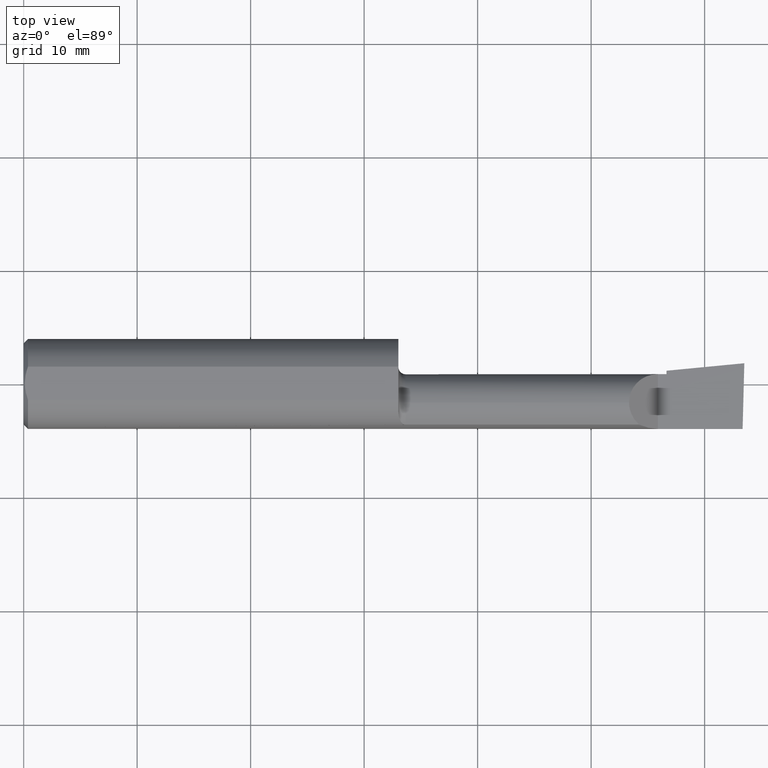
[diagram: clean part render]
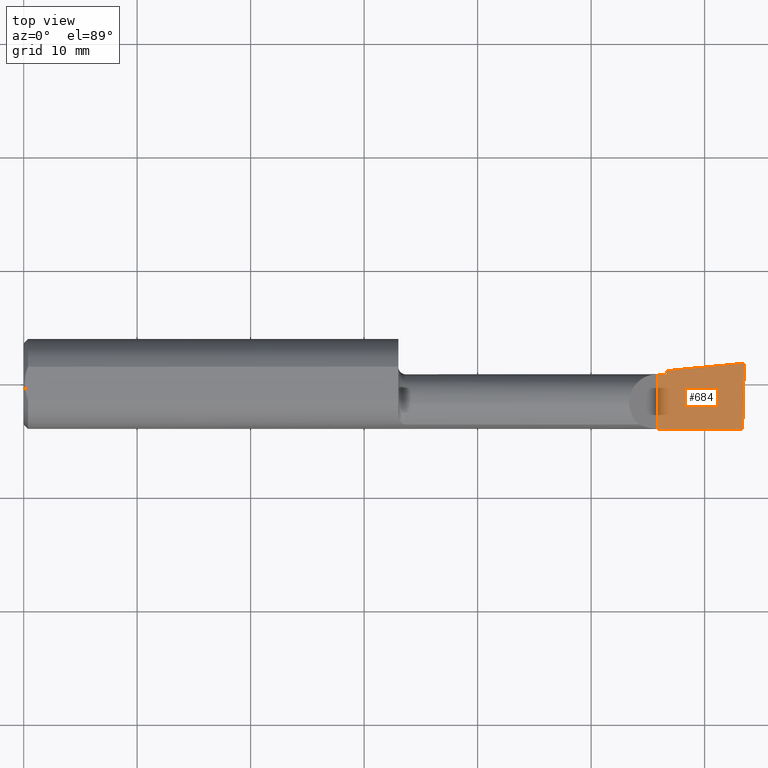
[diagram: same view with one face highlighted and labeled with its STEP entity id]
A machine part, top view. The second image highlights one B-rep face of the part: STEP entity #684.
In plain terms, the highlighted planar face has unit normal (-0, 0, -1).
Its self-contained STEP definition (entity closure, byte-faithful):
#54 = VERTEX_POINT ( 'NONE', #344 ) ;
#56 = FACE_OUTER_BOUND ( 'NONE', #578, .T. ) ;
#58 = CARTESIAN_POINT ( 'NONE',  ( 2.229999999999999982, 0.04590195698666835883, 3.180041805124806541E-16 ) ) ;
#59 = ORIENTED_EDGE ( 'NONE', *, *, #305, .F. ) ;
#66 = LINE ( 'NONE', #681, #334 ) ;
#70 = VERTEX_POINT ( 'NONE', #58 ) ;
#84 = VERTEX_POINT ( 'NONE', #661 ) ;
#105 = VECTOR ( 'NONE', #614, 39.37007874015748143 ) ;
#133 = DIRECTION ( 'NONE',  ( 0.0000000000000000000, 1.000000000000000000, 0.0000000000000000000 ) ) ;
#139 = VERTEX_POINT ( 'NONE', #542 ) ;
#145 = LINE ( 'NONE', #519, #479 ) ;
#159 = EDGE_CURVE ( 'NONE', #70, #569, #194, .T. ) ;
#179 = CARTESIAN_POINT ( 'NONE',  ( 1.067853742648958049, -0.06599999999999998923, 2.099619311869716025E-16 ) ) ;
#194 = LINE ( 'NONE', #179, #686 ) ;
#209 = EDGE_CURVE ( 'NONE', #139, #569, #408, .T. ) ;
#233 = CARTESIAN_POINT ( 'NONE',  ( 2.491576527842699562, -0.2497794236187485528, 6.912943690626120576E-17 ) ) ;
#258 = VECTOR ( 'NONE', #645, 39.37007874015748143 ) ;
#265 = EDGE_CURVE ( 'NONE', #54, #84, #275, .T. ) ;
#275 = LINE ( 'NONE', #515, #293 ) ;
#293 = VECTOR ( 'NONE', #301, 39.37007874015748143 ) ;
#294 = CARTESIAN_POINT ( 'NONE',  ( 2.500000000000000000, -0.2500000000000000555, 6.829619984160658046E-17 ) ) ;
#301 = DIRECTION ( 'NONE',  ( -0.0000000000000000000, 1.000000000000000000, -0.0000000000000000000 ) ) ;
#305 = EDGE_CURVE ( 'NONE', #350, #70, #145, .T. ) ;
#315 = PLANE ( 'NONE',  #683 ) ;
#318 = EDGE_CURVE ( 'NONE', #84, #350, #66, .T. ) ;
#323 = DIRECTION ( 'NONE',  ( -1.000000000000000000, 0.0000000000000000000, 9.891848030060559526E-17 ) ) ;
#324 = DIRECTION ( 'NONE',  ( -9.891848030060559526E-17, 0.0000000000000000000, -1.000000000000000000 ) ) ;
#334 = VECTOR ( 'NONE', #626, 39.37007874015748143 ) ;
#344 = CARTESIAN_POINT ( 'NONE',  ( 2.200000000000000178, -0.1560999999999999888, 9.797174393178826150E-17 ) ) ;
#350 = VERTEX_POINT ( 'NONE', #685 ) ;
#408 = LINE ( 'NONE', #233, #105 ) ;
#445 = ORIENTED_EDGE ( 'NONE', *, *, #499, .F. ) ;
#459 = ORIENTED_EDGE ( 'NONE', *, *, #318, .F. ) ;
#479 = VECTOR ( 'NONE', #133, 39.37007874015748143 ) ;
#499 = EDGE_CURVE ( 'NONE', #139, #54, #620, .T. ) ;
#513 = ORIENTED_EDGE ( 'NONE', *, *, #159, .F. ) ;
#515 = CARTESIAN_POINT ( 'NONE',  ( 2.200000000000000178, -0.2500000000000000555, 9.797174393178826150E-17 ) ) ;
#519 = CARTESIAN_POINT ( 'NONE',  ( 2.229999999999999982, -0.2500000000000000555, 9.500418952277011559E-17 ) ) ;
#530 = ORIENTED_EDGE ( 'NONE', *, *, #265, .F. ) ;
#542 = CARTESIAN_POINT ( 'NONE',  ( 2.494029609882228549, -0.1561000000000000165, 6.889038570631779204E-17 ) ) ;
#547 = CARTESIAN_POINT ( 'NONE',  ( 2.500000000000015543, 0.07190000000002047531, 6.193638301338760095E-14 ) ) ;
#569 = VERTEX_POINT ( 'NONE', #547 ) ;
#578 = EDGE_LOOP ( 'NONE', ( #445, #671, #513, #59, #459, #530 ) ) ;
#614 = DIRECTION ( 'NONE',  ( 0.02617694830789217553, 0.9996573249755568158, -2.550926060776988469E-18 ) ) ;
#620 = LINE ( 'NONE', #639, #258 ) ;
#626 = DIRECTION ( 'NONE',  ( 1.000000000000000000, 0.0000000000000000000, 0.0000000000000000000 ) ) ;
#639 = CARTESIAN_POINT ( 'NONE',  ( 3.121792066109142165E-32, -0.1560999999999999333, 3.155924005931204823E-16 ) ) ;
#645 = DIRECTION ( 'NONE',  ( -1.000000000000000000, -0.0000000000000000000, -0.0000000000000000000 ) ) ;
#661 = CARTESIAN_POINT ( 'NONE',  ( 2.200000000000000178, 0.03389999999999987468, 9.797174393178826150E-17 ) ) ;
#666 = DIRECTION ( 'NONE',  ( 0.9953961983671787417, 0.09584575252022466130, -9.846307923948147589E-17 ) ) ;
#671 = ORIENTED_EDGE ( 'NONE', *, *, #209, .T. ) ;
#681 = CARTESIAN_POINT ( 'NONE',  ( 3.121792066109142165E-32, 0.03389999999999990937, 3.155924005931204823E-16 ) ) ;
#683 = AXIS2_PLACEMENT_3D ( 'NONE', #294, #324, #323 ) ;
#684 = ADVANCED_FACE ( 'NONE', ( #56 ), #315, .F. ) ;
#685 = CARTESIAN_POINT ( 'NONE',  ( 2.229999999999999982, 0.03389999999999996488, 3.155924005931206302E-16 ) ) ;
#686 = VECTOR ( 'NONE', #666, 39.37007874015748143 ) ;